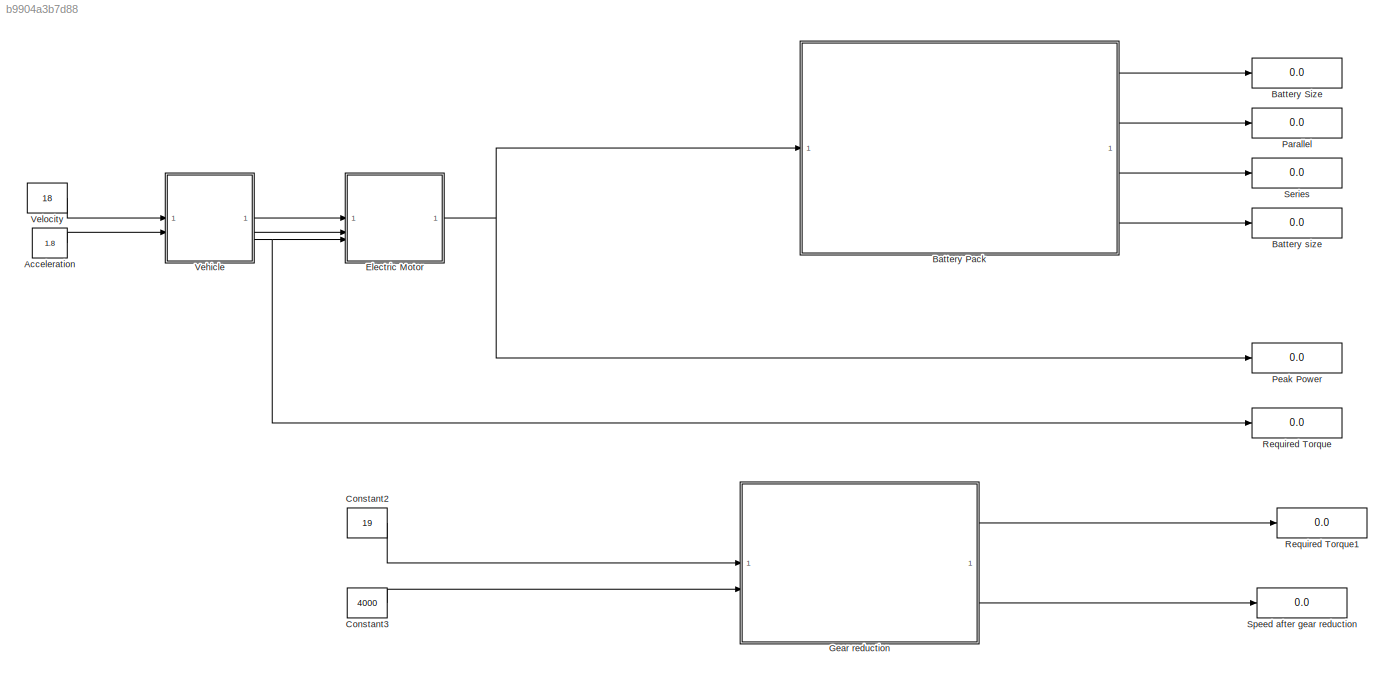
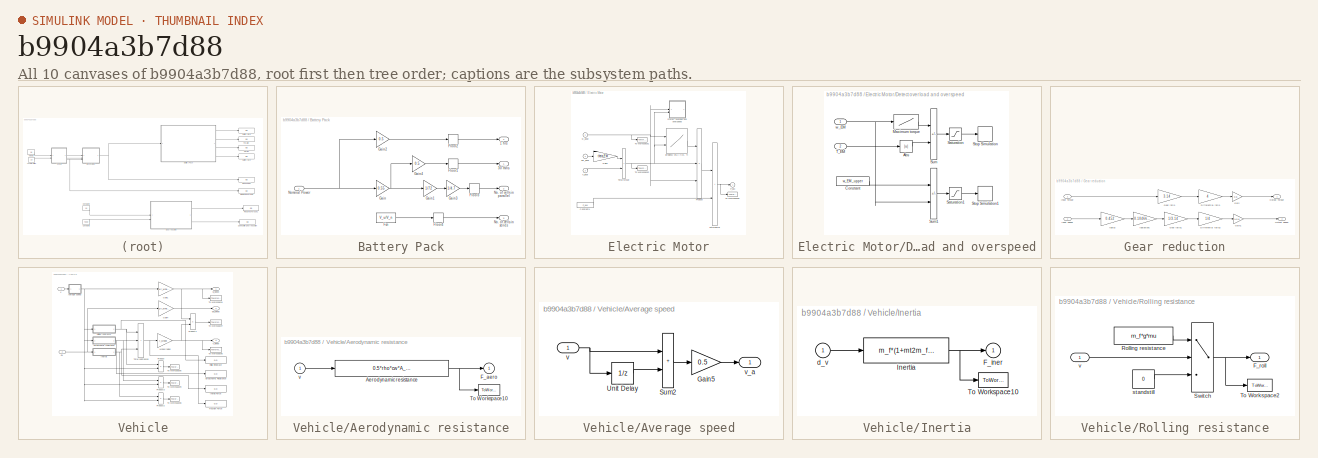
[diagram: thumbnail index - all 10 canvases of the model, root first then tree order]
MODEL slx_b9904a3b7d88
KIND model
CONFIG AbsTol = auto
CONFIG EnableMultiTasking = off
CONFIG FixedStep = auto
CONFIG MaxStep = auto
CONFIG MinStep = auto
CONFIG RelTol = 1e-3
CONFIG SampleTimeConstraint = Unconstrained
CONFIG SolverName = VariableStepAuto
CONFIG StartTime = 0.0
CONFIG StopTime = 1220
BLOCK [Constant] Acceleration
  Value = 1.8
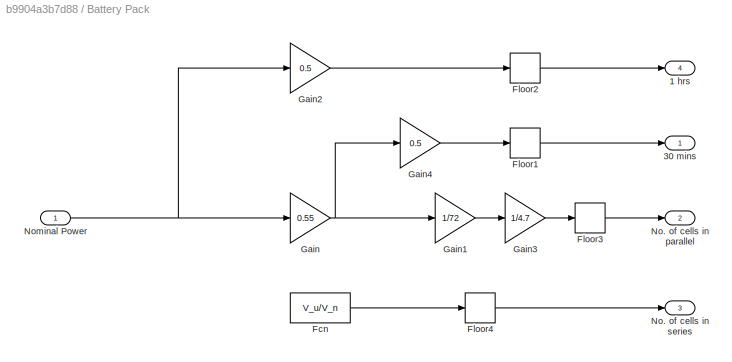
BLOCK [SubSystem] Battery Pack
BLOCK [Outport] Battery Pack/1 hrs
  Port = 4
BLOCK [Outport] Battery Pack/30 mins
BLOCK [Fcn] Battery Pack/Fcn
  Expr = V_u/V_n
BLOCK [Rounding] Battery Pack/Floor1
  Operator = ceil
BLOCK [Rounding] Battery Pack/Floor2
  Operator = ceil
BLOCK [Rounding] Battery Pack/Floor3
BLOCK [Rounding] Battery Pack/Floor4
  Operator = ceil
BLOCK [Gain] Battery Pack/Gain
  Gain = 0.55
BLOCK [Gain] Battery Pack/Gain1
  Gain = 1/72
BLOCK [Gain] Battery Pack/Gain2
  Gain = 0.5
BLOCK [Gain] Battery Pack/Gain3
  Gain = 1/4.7
BLOCK [Gain] Battery Pack/Gain4
  Gain = 0.5
BLOCK [Outport] Battery Pack/No. of cells in parallel
  Port = 2
BLOCK [Outport] Battery Pack/No. of cells in series
  Port = 3
BLOCK [Inport] Battery Pack/Nominal Power
  NameLocation = top
BLOCK [Display] Battery Size
  Decimation = 1
BLOCK [Display] Battery size
  Decimation = 1
BLOCK [Constant] Constant2
  Value = 19
BLOCK [Constant] Constant3
  Value = 4000
BLOCK [SubSystem] Electric Motor
  AncestorBlock = qss_tb_library/Energy Converter/Electric Motor
  LibrarySourceBlock = qss_tb_library/Energy Converter/Electric Motor
BLOCK [Constant] Electric Motor/Constant1
  Value = P_aux
BLOCK [SubSystem] Electric Motor/Detect overload and overspeed
BLOCK [Abs] Electric Motor/Detect overload and overspeed/Abs
BLOCK [Constant] Electric Motor/Detect overload and overspeed/Constant
  Value = w_EM_upper
BLOCK [Lookup] Electric Motor/Detect overload and overspeed/Maximum torque
  InputValues = w_EM_row
  Table = T_EM_max
BLOCK [Saturate] Electric Motor/Detect overload and overspeed/Saturation
  LowerLimit = -inf
  UpperLimit = 0
BLOCK [Saturate] Electric Motor/Detect overload and overspeed/Saturation1
  LowerLimit = -inf
  UpperLimit = 0
BLOCK [Stop] Electric Motor/Detect overload and overspeed/Stop Simulation
BLOCK [Stop] Electric Motor/Detect overload and overspeed/Stop Simulation1
BLOCK [Sum] Electric Motor/Detect overload and overspeed/Sum
  IconShape = rectangular
  InputSameDT = on
  Inputs = +-
  OutDataTypeStr = Inherit: Same as first input
  SaturateOnIntegerOverflow = on
BLOCK [Sum] Electric Motor/Detect overload and overspeed/Sum1
  IconShape = rectangular
  InputSameDT = on
  Inputs = +-
  OutDataTypeStr = Inherit: Same as first input
  SaturateOnIntegerOverflow = on
BLOCK [Inport] Electric Motor/Detect overload and overspeed/T_EM
  Port = 2
BLOCK [Inport] Electric Motor/Detect overload and overspeed/w_EM
BLOCK [Lookup2D] Electric Motor/Efficiency eta = f(w, T)
  ColumnIndex = T_EM_col
  InputSameDT = off
  RowIndex = w_EM_row
  SaturateOnIntegerOverflow = off
  Table = eta_EM_map
BLOCK [Gain] Electric Motor/Gain1
  Gain = theta_EM
  OutDataTypeStr = Inherit: Same as input
  ParamDataTypeStr = Inherit: Same as input
  SaturateOnIntegerOverflow = on
BLOCK [Outport] Electric Motor/P_EM
  InitialOutput = 0
BLOCK [Product] Electric Motor/Product
  InputSameDT = on
  Inputs = 3
  OutDataTypeStr = Inherit: Same as first input
  RndMeth = Zero
  SaturateOnIntegerOverflow = on
BLOCK [Inport] Electric Motor/T_gear
  Port = 3
BLOCK [ToWorkspace] Electric Motor/To Workspace1
  MaxDataPoints = inf
  NameLocation = top
  SampleTime = -1
  VariableName = w_EM
BLOCK [ToWorkspace] Electric Motor/To Workspace2
  MaxDataPoints = inf
  NameLocation = top
  SampleTime = -1
  VariableName = T_EM
BLOCK [ToWorkspace] Electric Motor/To Workspace5
  MaxDataPoints = inf
  NameLocation = top
  SampleTime = -1
  VariableName = P_EM
BLOCK [Sum] Electric Motor/Total power
  IconShape = rectangular
  InputSameDT = on
  OutDataTypeStr = Inherit: Same as first input
  SaturateOnIntegerOverflow = on
BLOCK [Sum] Electric Motor/Total torque
  IconShape = rectangular
  InputSameDT = on
  OutDataTypeStr = Inherit: Same as first input
  SaturateOnIntegerOverflow = on
BLOCK [Inport] Electric Motor/dw_gear
  Port = 2
BLOCK [Inport] Electric Motor/w_gear
BLOCK [SubSystem] Gear reduction
BLOCK [Gain] Gear reduction/Differential ratio
  Gain = 4
BLOCK [Gain] Gear reduction/Differential ratio2
  Gain = 1/4
BLOCK [Gain] Gear reduction/Gain
  Gain = 0.8
BLOCK [Gain] Gear reduction/Gain1
  Gain = 1/0.8
BLOCK [Gain] Gear reduction/Gear ratio
  Gain = 3.14
BLOCK [Gain] Gear reduction/Gear ratio1
  Gain = 1/3.14
BLOCK [Inport] Gear reduction/Input Speed
  Port = 2
BLOCK [Inport] Gear reduction/Input Torque
BLOCK [Outport] Gear reduction/Output Speed
  Port = 2
BLOCK [Outport] Gear reduction/Output Torque
BLOCK [Gain] Gear reduction/radian//sec
  Gain = 0.10466666666
BLOCK [Gain] Gear reduction/radius
  Gain = 0.452
BLOCK [Display] Parallel
  Decimation = 1
BLOCK [Display] Peak Power
  Decimation = 1
BLOCK [Display] Required Torque
  Decimation = 1
BLOCK [Display] Required Torque1
  Decimation = 1
BLOCK [Display] Series
  Decimation = 1
BLOCK [Display] Speed after gear reduction
  Decimation = 1
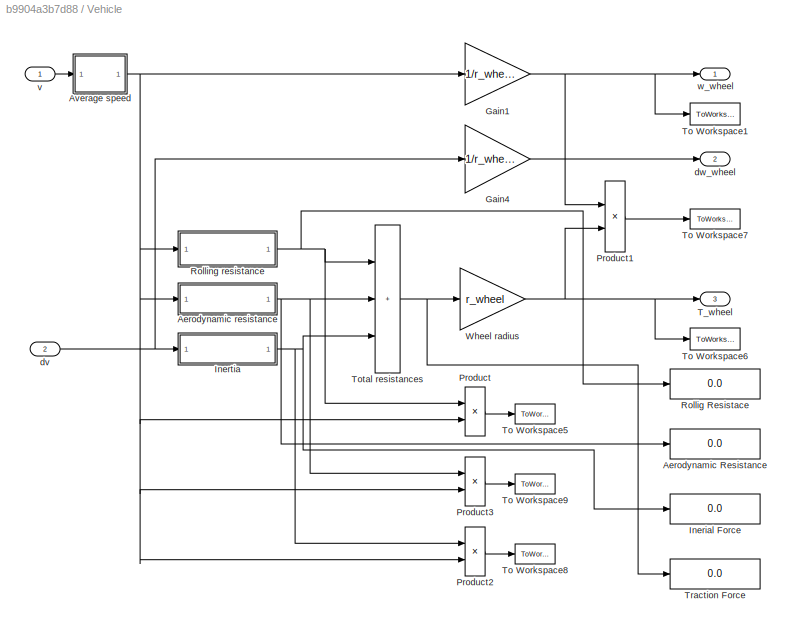
BLOCK [SubSystem] Vehicle
  AncestorBlock = qss_tb_library/Vehicle/Vehicle
  LibrarySourceBlock = qss_tb_library/Vehicle/Vehicle
  Tag = vehicle
BLOCK [Display] Vehicle/Aerodynamic Resistance
  Decimation = 1
BLOCK [SubSystem] Vehicle/Aerodynamic resistance
BLOCK [Fcn] Vehicle/Aerodynamic resistance/Aerodynamic resistance
  Expr = 0.5*rho*cw*A_f*u^2
BLOCK [Outport] Vehicle/Aerodynamic resistance/F_aero
  InitialOutput = 0
BLOCK [ToWorkspace] Vehicle/Aerodynamic resistance/To Workspace10
  MaxDataPoints = inf
  NameLocation = top
  SampleTime = -1
  VariableName = F_aero
BLOCK [Inport] Vehicle/Aerodynamic resistance/v
BLOCK [SubSystem] Vehicle/Average speed
BLOCK [Gain] Vehicle/Average speed/Gain5
  Gain = 0.5
  OutDataTypeStr = Inherit: Same as input
  ParamDataTypeStr = Inherit: Same as input
  SaturateOnIntegerOverflow = on
BLOCK [Sum] Vehicle/Average speed/Sum2
  IconShape = rectangular
  InputSameDT = on
  OutDataTypeStr = Inherit: Same as first input
  SaturateOnIntegerOverflow = on
BLOCK [UnitDelay] Vehicle/Average speed/Unit Delay
  SampleTime = h
BLOCK [Inport] Vehicle/Average speed/v
BLOCK [Outport] Vehicle/Average speed/v_a
  InitialOutput = 0
BLOCK [Gain] Vehicle/Gain1
  Gain = 1/r_wheel
  OutDataTypeStr = Inherit: Same as input
  ParamDataTypeStr = Inherit: Same as input
  SaturateOnIntegerOverflow = on
BLOCK [Gain] Vehicle/Gain4
  Gain = 1/r_wheel
  OutDataTypeStr = Inherit: Same as input
  ParamDataTypeStr = Inherit: Same as input
  SaturateOnIntegerOverflow = on
BLOCK [Display] Vehicle/Inerial Force
  Decimation = 1
BLOCK [SubSystem] Vehicle/Inertia
BLOCK [Outport] Vehicle/Inertia/F_iner
  InitialOutput = 0
BLOCK [Fcn] Vehicle/Inertia/Inertia
  Expr = m_f*(1+mt2m_f)*u/h
BLOCK [ToWorkspace] Vehicle/Inertia/To Workspace10
  MaxDataPoints = inf
  NameLocation = top
  SampleTime = -1
  VariableName = F_iner
BLOCK [Inport] Vehicle/Inertia/d_v
BLOCK [Product] Vehicle/Product
  InputSameDT = on
  OutDataTypeStr = Inherit: Same as first input
  RndMeth = Zero
  SaturateOnIntegerOverflow = on
BLOCK [Product] Vehicle/Product1
  InputSameDT = on
  OutDataTypeStr = Inherit: Same as first input
  RndMeth = Zero
  SaturateOnIntegerOverflow = on
BLOCK [Product] Vehicle/Product2
  InputSameDT = on
  OutDataTypeStr = Inherit: Same as first input
  RndMeth = Zero
  SaturateOnIntegerOverflow = on
BLOCK [Product] Vehicle/Product3
  InputSameDT = on
  OutDataTypeStr = Inherit: Same as first input
  RndMeth = Zero
  SaturateOnIntegerOverflow = on
BLOCK [Display] Vehicle/Rollig Resistace
  Decimation = 1
BLOCK [SubSystem] Vehicle/Rolling resistance
BLOCK [Outport] Vehicle/Rolling resistance/F_roll
BLOCK [Constant] Vehicle/Rolling resistance/Rolling resistance
  Value = m_f*g*mu
BLOCK [Switch] Vehicle/Rolling resistance/Switch
  Criteria = u2 > Threshold
  InputSameDT = off
  SaturateOnIntegerOverflow = off
  Threshold = eps
BLOCK [ToWorkspace] Vehicle/Rolling resistance/To Workspace2
  MaxDataPoints = inf
  NameLocation = top
  SampleTime = -1
  VariableName = F_roll
BLOCK [Constant] Vehicle/Rolling resistance/standstill
  Value = 0
BLOCK [Inport] Vehicle/Rolling resistance/v
BLOCK [Outport] Vehicle/T_wheel
  InitialOutput = 0
  Port = 3
BLOCK [ToWorkspace] Vehicle/To Workspace1
  MaxDataPoints = inf
  NameLocation = top
  SampleTime = -1
  VariableName = w_wheel
BLOCK [ToWorkspace] Vehicle/To Workspace5
  MaxDataPoints = inf
  NameLocation = top
  SampleTime = -1
  VariableName = P_roll
BLOCK [ToWorkspace] Vehicle/To Workspace6
  MaxDataPoints = inf
  NameLocation = top
  SampleTime = -1
  VariableName = T_wheel
BLOCK [ToWorkspace] Vehicle/To Workspace7
  MaxDataPoints = inf
  NameLocation = top
  SampleTime = -1
  VariableName = P_wheel
BLOCK [ToWorkspace] Vehicle/To Workspace8
  MaxDataPoints = inf
  NameLocation = top
  SampleTime = -1
  VariableName = P_iner
BLOCK [ToWorkspace] Vehicle/To Workspace9
  MaxDataPoints = inf
  NameLocation = top
  SampleTime = -1
  VariableName = P_aero
BLOCK [Sum] Vehicle/Total resistances
  IconShape = rectangular
  InputSameDT = on
  Inputs = +++
  OutDataTypeStr = Inherit: Same as first input
  SaturateOnIntegerOverflow = on
BLOCK [Display] Vehicle/Traction Force
  Decimation = 1
BLOCK [Gain] Vehicle/Wheel radius
  Gain = r_wheel
  OutDataTypeStr = Inherit: Same as input
  ParamDataTypeStr = Inherit: Same as input
  SaturateOnIntegerOverflow = on
BLOCK [Inport] Vehicle/dv
  Port = 2
BLOCK [Outport] Vehicle/dw_wheel
  InitialOutput = 0
  Port = 2
BLOCK [Inport] Vehicle/v
BLOCK [Outport] Vehicle/w_wheel
  InitialOutput = 0
BLOCK [Constant] Velocity
  Value = 18
LINE Acceleration:1 -> Vehicle:2
LINE Battery Pack/Fcn:1 -> Battery Pack/Floor4:1
LINE Battery Pack/Floor1:1 -> Battery Pack/30 mins:1
LINE Battery Pack/Floor2:1 -> Battery Pack/1 hrs:1
LINE Battery Pack/Floor3:1 -> Battery Pack/No. of cells in parallel:1
LINE Battery Pack/Floor4:1 -> Battery Pack/No. of cells in series:1
LINE Battery Pack/Gain1:1 -> Battery Pack/Gain3:1
LINE Battery Pack/Gain2:1 -> Battery Pack/Floor2:1
LINE Battery Pack/Gain3:1 -> Battery Pack/Floor3:1
LINE Battery Pack/Gain4:1 -> Battery Pack/Floor1:1
NET Battery Pack/Gain:1 -> Battery Pack/Gain1:1, Battery Pack/Gain4:1
NET Battery Pack/Nominal Power:1 -> Battery Pack/Gain2:1, Battery Pack/Gain:1
LINE Battery Pack:1 -> Battery Size:1
LINE Battery Pack:2 -> Parallel:1
LINE Battery Pack:3 -> Series:1
LINE Battery Pack:4 -> Battery size:1
LINE Constant2:1 -> Gear reduction:1
LINE Constant3:1 -> Gear reduction:2
NET Electric Motor:1 -> Battery Pack:1, Peak Power:1
LINE Gear reduction/Differential ratio2:1 -> Gear reduction/Gain1:1
LINE Gear reduction/Differential ratio:1 -> Gear reduction/Gain:1
LINE Gear reduction/Gain1:1 -> Gear reduction/Output Speed:1
LINE Gear reduction/Gain:1 -> Gear reduction/Output Torque:1
LINE Gear reduction/Gear ratio1:1 -> Gear reduction/Differential ratio2:1
LINE Gear reduction/Gear ratio:1 -> Gear reduction/Differential ratio:1
LINE Gear reduction/Input Speed:1 -> Gear reduction/radius:1
LINE Gear reduction/Input Torque:1 -> Gear reduction/Gear ratio:1
LINE Gear reduction/radian//sec:1 -> Gear reduction/Gear ratio1:1
LINE Gear reduction/radius:1 -> Gear reduction/radian//sec:1
LINE Gear reduction:1 -> Required Torque1:1
LINE Gear reduction:2 -> Speed after gear reduction:1
LINE Vehicle:1 -> Electric Motor:1
LINE Vehicle:2 -> Electric Motor:2
NET Vehicle:3 -> Electric Motor:3, Required Torque:1
LINE Velocity:1 -> Vehicle:1
note: NET lines group one-source signal fan-out (src -> all destinations, sorted); 1:1 wires keep LINE
